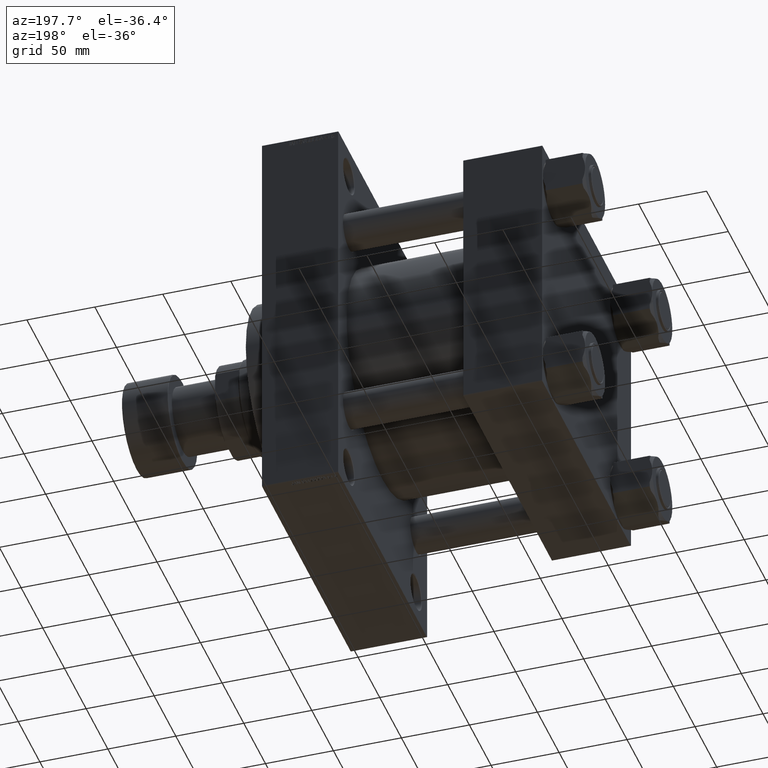
[diagram: clean part render]
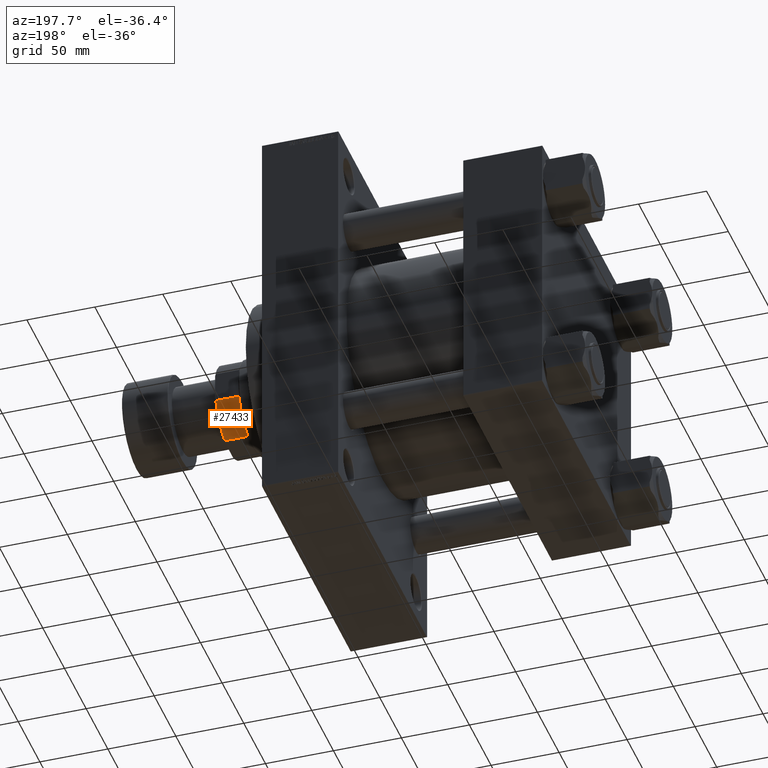
[diagram: same view with one face highlighted and labeled with its STEP entity id]
A machine part, auxiliary view. The second image highlights one B-rep face of the part: STEP entity #27433.
In plain terms, the highlighted cylindrical surface (partial cylindrical patch) has radius 34 mm, axis along (1, 0, 0).
Its self-contained STEP definition (entity closure, byte-faithful):
#867 = DIRECTION ( 'NONE',  ( -1.000000000000000000, 0.000000000000000000, 0.000000000000000000 ) ) ;
#1368 = CARTESIAN_POINT ( 'NONE',  ( -32.00000000000000000, 11.48912529307606256, -0.001000000000001000089 ) ) ;
#1458 = DIRECTION ( 'NONE',  ( 1.000000000000000000, 0.000000000000000000, 0.000000000000000000 ) ) ;
#2046 = CARTESIAN_POINT ( 'NONE',  ( -11.48912529307602526, 32.00000000000001421, 204.4999999999997442 ) ) ;
#2609 = EDGE_CURVE ( 'NONE', #6284, #19783, #23979, .T. ) ;
#3467 = FACE_OUTER_BOUND ( 'NONE', #35066, .T. ) ;
#4130 = VECTOR ( 'NONE', #25714, 1000.000000000000000 ) ;
#6284 = VERTEX_POINT ( 'NONE', #21736 ) ;
#6406 = DIRECTION ( 'NONE',  ( -0.000000000000000000, -0.000000000000000000, 1.000000000000000000 ) ) ;
#11419 = EDGE_CURVE ( 'NONE', #19783, #42024, #37705, .T. ) ;
#11550 = CARTESIAN_POINT ( 'NONE',  ( -32.00000000000000000, 11.48912529307606256, 204.4999999999997442 ) ) ;
#15282 = VERTEX_POINT ( 'NONE', #25318 ) ;
#15350 = ORIENTED_EDGE ( 'NONE', *, *, #47828, .F. ) ;
#16269 = ORIENTED_EDGE ( 'NONE', *, *, #2609, .T. ) ;
#16726 = AXIS2_PLACEMENT_3D ( 'NONE', #27485, #31629, #1458 ) ;
#19783 = VERTEX_POINT ( 'NONE', #11550 ) ;
#21110 = EDGE_CURVE ( 'NONE', #15282, #6284, #22544, .T. ) ;
#21736 = CARTESIAN_POINT ( 'NONE',  ( -32.00000000000000000, 11.48912529307606079, 187.5000000000000853 ) ) ;
#21822 = LINE ( 'NONE', #37418, #4130 ) ;
#22544 = CIRCLE ( 'NONE', #31107, 34.00000000000000000 ) ;
#23767 = ORIENTED_EDGE ( 'NONE', *, *, #11419, .T. ) ;
#23979 = LINE ( 'NONE', #1368, #34611 ) ;
#24091 = AXIS2_PLACEMENT_3D ( 'NONE', #25595, #6406, #32192 ) ;
#25318 = CARTESIAN_POINT ( 'NONE',  ( -11.48912529307602171, 32.00000000000001421, 187.5000000000000853 ) ) ;
#25595 = CARTESIAN_POINT ( 'NONE',  ( 0.000000000000000000, 0.000000000000000000, -0.001000000000001000089 ) ) ;
#25714 = DIRECTION ( 'NONE',  ( -0.000000000000000000, -0.000000000000000000, 1.000000000000000000 ) ) ;
#25965 = ORIENTED_EDGE ( 'NONE', *, *, #21110, .T. ) ;
#27433 = ADVANCED_FACE ( 'NONE', ( #3467 ), #27646, .T. ) ;
#27485 = CARTESIAN_POINT ( 'NONE',  ( 0.000000000000000000, 0.000000000000000000, 204.4999999999998010 ) ) ;
#27646 = CYLINDRICAL_SURFACE ( 'NONE', #24091, 34.00000000000000000 ) ;
#31107 = AXIS2_PLACEMENT_3D ( 'NONE', #46130, #45389, #867 ) ;
#31629 = DIRECTION ( 'NONE',  ( -0.000000000000000000, -0.000000000000000000, -1.000000000000000000 ) ) ;
#32192 = DIRECTION ( 'NONE',  ( 1.000000000000000000, 0.000000000000000000, 0.000000000000000000 ) ) ;
#34611 = VECTOR ( 'NONE', #38130, 1000.000000000000000 ) ;
#35066 = EDGE_LOOP ( 'NONE', ( #16269, #23767, #15350, #25965 ) ) ;
#37418 = CARTESIAN_POINT ( 'NONE',  ( -11.48912529307602526, 32.00000000000001421, -0.001000000000001000089 ) ) ;
#37705 = CIRCLE ( 'NONE', #16726, 34.00000000000000000 ) ;
#38130 = DIRECTION ( 'NONE',  ( -0.000000000000000000, -0.000000000000000000, 1.000000000000000000 ) ) ;
#42024 = VERTEX_POINT ( 'NONE', #2046 ) ;
#45389 = DIRECTION ( 'NONE',  ( -0.000000000000000000, -0.000000000000000000, 1.000000000000000000 ) ) ;
#46130 = CARTESIAN_POINT ( 'NONE',  ( 0.000000000000000000, 0.000000000000000000, 187.5000000000000853 ) ) ;
#47828 = EDGE_CURVE ( 'NONE', #15282, #42024, #21822, .T. ) ;